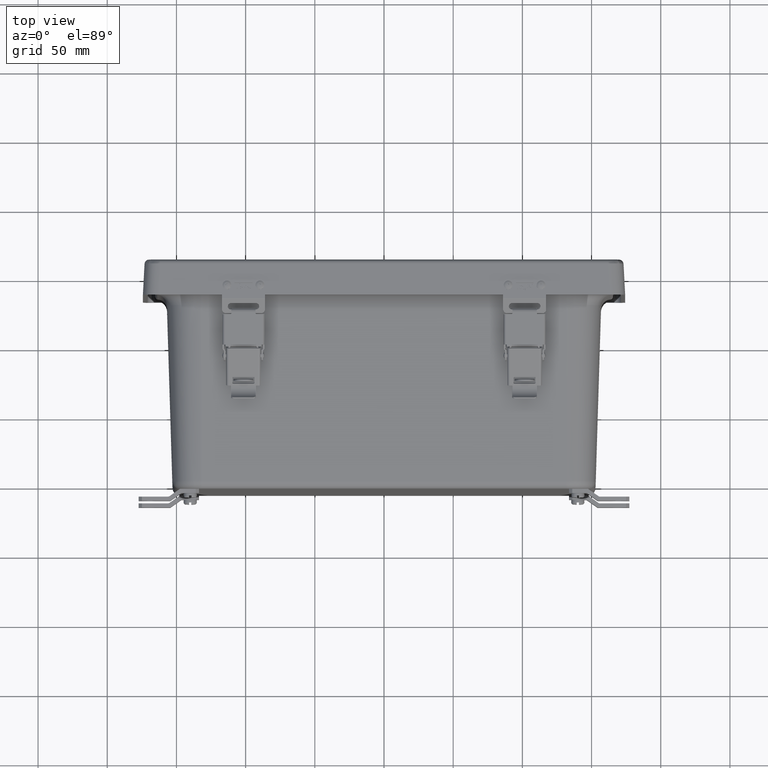
[diagram: clean part render]
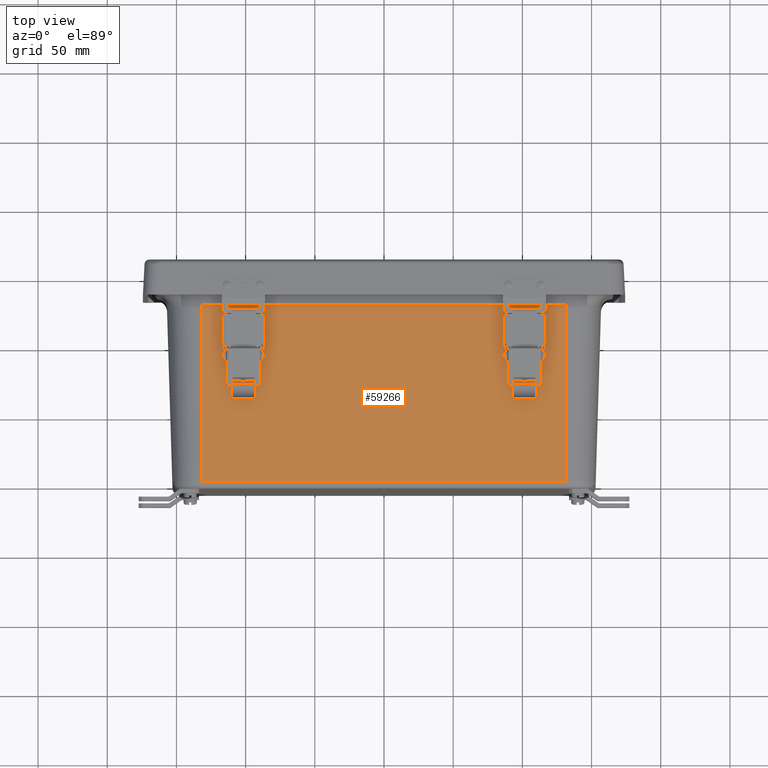
[diagram: same view with one face highlighted and labeled with its STEP entity id]
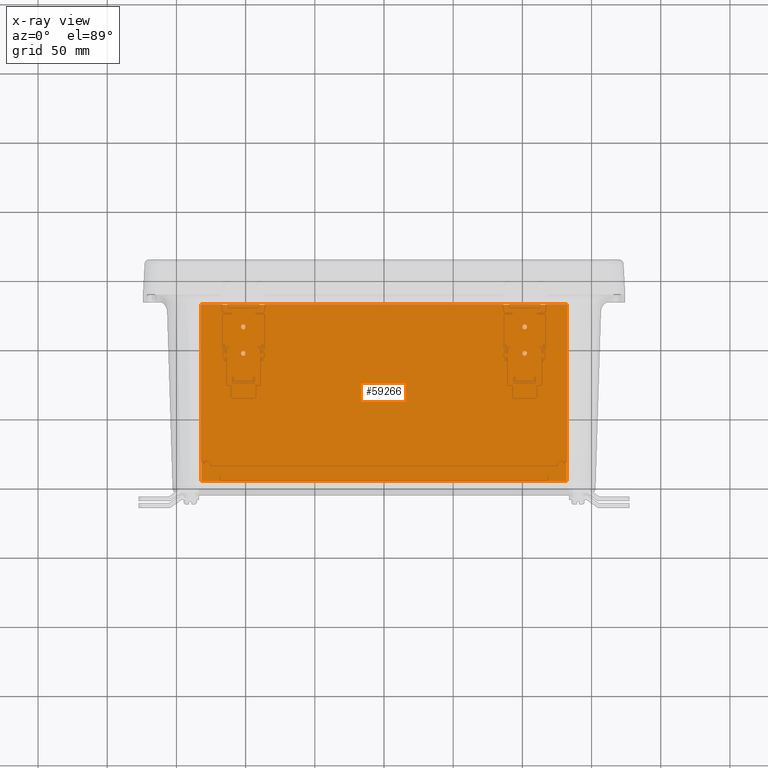
[diagram: x-ray of the same camera — body ghosted, the highlighted face saturated]
A machine part, top view. The second image highlights one B-rep face of the part: STEP entity #59266.
The next image is the same camera in x-ray: the body ghosted, the highlighted face saturated — about 0% of this face is hidden behind the body in this view.
In plain terms, the highlighted planar face has unit normal (0, -0.0305, 0.9995).
Its self-contained STEP definition (entity closure, byte-faithful):
#1722 = EDGE_CURVE ( 'NONE', #10350, #95828, #53704, .T. ) ;
#2208 =( BOUNDED_CURVE ( )  B_SPLINE_CURVE ( 3, ( #61749, #103355, #38068, #21660 ),
 .UNSPECIFIED., .F., .F. ) 
 B_SPLINE_CURVE_WITH_KNOTS ( ( 4, 4 ),
 ( 4.712388980384696800, 7.853981633974489900 ),
 .UNSPECIFIED. ) 
 CURVE ( )  GEOMETRIC_REPRESENTATION_ITEM ( )  RATIONAL_B_SPLINE_CURVE ( ( 1.000000000000000000, 0.3333333333333333700, 0.3333333333333333700, 1.000000000000000000 ) ) 
 REPRESENTATION_ITEM ( '' )  );
#3545 = EDGE_CURVE ( 'NONE', #72068, #5194, #35736, .T. ) ;
#3613 = CARTESIAN_POINT ( 'NONE',  ( -5.198999999999999800, -0.8964719838785354400, 6.171610303672742300 ) ) ;
#4088 = CARTESIAN_POINT ( 'NONE',  ( 3.932000000000000400, -2.274999999999999000, 6.129492463495709300 ) ) ;
#5194 = VERTEX_POINT ( 'NONE', #32462 ) ;
#5756 = CARTESIAN_POINT ( 'NONE',  ( -5.198999999999999800, -0.8964719838785353300, 6.171610303672742300 ) ) ;
#7986 = ORIENTED_EDGE ( 'NONE', *, *, #73530, .T. ) ;
#8818 = CARTESIAN_POINT ( 'NONE',  ( -4.067999999999999600, -2.274999999999999900, 6.129492463495710200 ) ) ;
#10174 = CARTESIAN_POINT ( 'NONE',  ( 3.932000000000000400, -2.410999999999999100, 6.125337287687100000 ) ) ;
#10321 = FACE_BOUND ( 'NONE', #32548, .T. ) ;
#10350 = VERTEX_POINT ( 'NONE', #42661 ) ;
#10526 = CARTESIAN_POINT ( 'NONE',  ( 4.068000000000000500, -1.524999999999998600, 6.152407035969649700 ) ) ;
#11142 = CARTESIAN_POINT ( 'NONE',  ( -3.932000000000000400, -1.388999999999999300, 6.156562211778260800 ) ) ;
#11466 = DIRECTION ( 'NONE',  ( 6.418663284611948800E-018, 0.9995335908367130000, 0.03053851320982272500 ) ) ;
#11502 = CARTESIAN_POINT ( 'NONE',  ( -4.067999999999999600, -1.388999999999999300, 6.156562211778260800 ) ) ;
#12413 = ORIENTED_EDGE ( 'NONE', *, *, #96557, .T. ) ;
#13355 = ORIENTED_EDGE ( 'NONE', *, *, #56010, .T. ) ;
#15214 = DIRECTION ( 'NONE',  ( 2.100845420063328200E-016, -0.03053851320982272500, 0.9995335908367130000 ) ) ;
#16110 = CARTESIAN_POINT ( 'NONE',  ( -3.931999999999999500, -2.274999999999999900, 6.129492463495710200 ) ) ;
#16114 = CARTESIAN_POINT ( 'NONE',  ( 3.932000000000000400, -2.138999999999998900, 6.133647639304316900 ) ) ;
#20344 = ORIENTED_EDGE ( 'NONE', *, *, #1722, .T. ) ;
#21660 = CARTESIAN_POINT ( 'NONE',  ( -4.067999999999999600, -1.524999999999999700, 6.152407035969652300 ) ) ;
#21825 = FACE_OUTER_BOUND ( 'NONE', #32884, .T. ) ;
#22005 = CARTESIAN_POINT ( 'NONE',  ( -3.931999999999999500, -1.524999999999999700, 6.152407035969652300 ) ) ;
#22646 = EDGE_CURVE ( 'NONE', #98776, #38755, #52693, .T. ) ;
#23588 = VERTEX_POINT ( 'NONE', #26193 ) ;
#23823 = DIRECTION ( 'NONE',  ( 0.0000000000000000000, -0.9995335908367130000, -0.03053851320982272500 ) ) ;
#23900 = CARTESIAN_POINT ( 'NONE',  ( -4.067999999999999600, -2.274999999999999900, 6.129492463495710200 ) ) ;
#25627 = VECTOR ( 'NONE', #94303, 39.37007874015748100 ) ;
#26193 = CARTESIAN_POINT ( 'NONE',  ( 5.198999999999999800, -0.8964719838785354400, 6.171610303672740500 ) ) ;
#26380 =( BOUNDED_CURVE ( )  B_SPLINE_CURVE ( 3, ( #74368, #48915, #33178, #58233 ),
 .UNSPECIFIED., .F., .F. ) 
 B_SPLINE_CURVE_WITH_KNOTS ( ( 4, 4 ),
 ( 1.570796326794903400, 4.712388980384696800 ),
 .UNSPECIFIED. ) 
 CURVE ( )  GEOMETRIC_REPRESENTATION_ITEM ( )  RATIONAL_B_SPLINE_CURVE ( ( 1.000000000000000000, 0.3333333333333333700, 0.3333333333333333700, 1.000000000000000000 ) ) 
 REPRESENTATION_ITEM ( '' )  );
#26643 = CARTESIAN_POINT ( 'NONE',  ( 4.068000000000000500, -2.410999999999999100, 6.125337287687100000 ) ) ;
#26905 = ORIENTED_EDGE ( 'NONE', *, *, #101517, .T. ) ;
#27363 = EDGE_CURVE ( 'NONE', #38755, #98776, #2208, .T. ) ;
#28374 = CARTESIAN_POINT ( 'NONE',  ( -5.198999999999999800, 0.0000000000000000000, 6.198999999999999800 ) ) ;
#29815 = EDGE_LOOP ( 'NONE', ( #33124, #26905 ) ) ;
#30826 = VERTEX_POINT ( 'NONE', #40435 ) ;
#31443 = CARTESIAN_POINT ( 'NONE',  ( -5.198999999999999800, -5.912687934392951500, 6.018351045082069600 ) ) ;
#32462 = CARTESIAN_POINT ( 'NONE',  ( 4.068000000000000500, -2.274999999999999000, 6.129492463495709300 ) ) ;
#32548 = EDGE_LOOP ( 'NONE', ( #99297, #77081 ) ) ;
#32884 = EDGE_LOOP ( 'NONE', ( #105354, #20344, #13355, #7986 ) ) ;
#33124 = ORIENTED_EDGE ( 'NONE', *, *, #78334, .T. ) ;
#33178 = CARTESIAN_POINT ( 'NONE',  ( 4.068000000000000500, -1.388999999999998500, 6.156562211778258100 ) ) ;
#35736 =( BOUNDED_CURVE ( )  B_SPLINE_CURVE ( 3, ( #88843, #16114, #40053, #72339 ),
 .UNSPECIFIED., .F., .T. ) 
 B_SPLINE_CURVE_WITH_KNOTS ( ( 4, 4 ),
 ( 1.570796326794903400, 4.712388980384696800 ),
 .UNSPECIFIED. ) 
 CURVE ( )  GEOMETRIC_REPRESENTATION_ITEM ( )  RATIONAL_B_SPLINE_CURVE ( ( 1.000000000000000000, 0.3333333333333333700, 0.3333333333333333700, 1.000000000000000000 ) ) 
 REPRESENTATION_ITEM ( '' )  );
#37769 = ORIENTED_EDGE ( 'NONE', *, *, #27363, .T. ) ;
#37947 =( BOUNDED_CURVE ( )  B_SPLINE_CURVE ( 3, ( #95667, #46531, #105683, #64414 ),
 .UNSPECIFIED., .F., .F. ) 
 B_SPLINE_CURVE_WITH_KNOTS ( ( 4, 4 ),
 ( 4.712388980384696800, 7.853981633974489900 ),
 .UNSPECIFIED. ) 
 CURVE ( )  GEOMETRIC_REPRESENTATION_ITEM ( )  RATIONAL_B_SPLINE_CURVE ( ( 1.000000000000000000, 0.3333333333333333700, 0.3333333333333333700, 1.000000000000000000 ) ) 
 REPRESENTATION_ITEM ( '' )  );
#38068 = CARTESIAN_POINT ( 'NONE',  ( -4.067999999999999600, -1.660999999999999800, 6.148251860161043000 ) ) ;
#38755 = VERTEX_POINT ( 'NONE', #22005 ) ;
#39218 = VERTEX_POINT ( 'NONE', #54064 ) ;
#40053 = CARTESIAN_POINT ( 'NONE',  ( 4.068000000000000500, -2.138999999999998900, 6.133647639304316900 ) ) ;
#40435 = CARTESIAN_POINT ( 'NONE',  ( 3.932000000000000400, -1.524999999999998600, 6.152407035969649700 ) ) ;
#40953 = FACE_BOUND ( 'NONE', #49221, .T. ) ;
#42661 = CARTESIAN_POINT ( 'NONE',  ( -5.198999999999999800, -5.912687934392951500, 6.018351045082069600 ) ) ;
#42914 = VECTOR ( 'NONE', #71571, 39.37007874015748100 ) ;
#46531 = CARTESIAN_POINT ( 'NONE',  ( -3.932000000000000400, -2.411000000000000500, 6.125337287687101700 ) ) ;
#48569 = VECTOR ( 'NONE', #71892, 39.37007874015748100 ) ;
#48915 = CARTESIAN_POINT ( 'NONE',  ( 3.932000000000000400, -1.388999999999998500, 6.156562211778258100 ) ) ;
#49221 = EDGE_LOOP ( 'NONE', ( #55021, #37769 ) ) ;
#51033 = LINE ( 'NONE', #76581, #66463 ) ;
#52693 =( BOUNDED_CURVE ( )  B_SPLINE_CURVE ( 3, ( #76270, #11502, #11142, #76616 ),
 .UNSPECIFIED., .F., .F. ) 
 B_SPLINE_CURVE_WITH_KNOTS ( ( 4, 4 ),
 ( 1.570796326794903400, 4.712388980384696800 ),
 .UNSPECIFIED. ) 
 CURVE ( )  GEOMETRIC_REPRESENTATION_ITEM ( )  RATIONAL_B_SPLINE_CURVE ( ( 1.000000000000000000, 0.3333333333333333700, 0.3333333333333333700, 1.000000000000000000 ) ) 
 REPRESENTATION_ITEM ( '' )  );
#53704 = LINE ( 'NONE', #31443, #48569 ) ;
#54064 = CARTESIAN_POINT ( 'NONE',  ( -3.931999999999999500, -2.274999999999999900, 6.129492463495710200 ) ) ;
#55021 = ORIENTED_EDGE ( 'NONE', *, *, #22646, .T. ) ;
#55989 = CARTESIAN_POINT ( 'NONE',  ( -5.198999999999999800, 0.0000000000000000000, 6.198999999999999800 ) ) ;
#56010 = EDGE_CURVE ( 'NONE', #95828, #23588, #51033, .T. ) ;
#57494 = CARTESIAN_POINT ( 'NONE',  ( -4.067999999999999600, -1.524999999999999700, 6.152407035969652300 ) ) ;
#58233 = CARTESIAN_POINT ( 'NONE',  ( 4.068000000000000500, -1.524999999999998600, 6.152407035969649700 ) ) ;
#59266 = ADVANCED_FACE ( 'NONE', ( #93574, #79420, #10321, #40953, #21825 ), #98663, .T. ) ;
#60299 = CARTESIAN_POINT ( 'NONE',  ( -3.932000000000000400, -2.138999999999999800, 6.133647639304319600 ) ) ;
#61749 = CARTESIAN_POINT ( 'NONE',  ( -3.931999999999999500, -1.524999999999999700, 6.152407035969652300 ) ) ;
#63085 =( BOUNDED_CURVE ( )  B_SPLINE_CURVE ( 3, ( #10526, #99724, #91809, #76717 ),
 .UNSPECIFIED., .F., .F. ) 
 B_SPLINE_CURVE_WITH_KNOTS ( ( 4, 4 ),
 ( 4.712388980384696800, 7.853981633974489900 ),
 .UNSPECIFIED. ) 
 CURVE ( )  GEOMETRIC_REPRESENTATION_ITEM ( )  RATIONAL_B_SPLINE_CURVE ( ( 1.000000000000000000, 0.3333333333333333700, 0.3333333333333333700, 1.000000000000000000 ) ) 
 REPRESENTATION_ITEM ( '' )  );
#64414 = CARTESIAN_POINT ( 'NONE',  ( -4.067999999999999600, -2.274999999999999900, 6.129492463495710200 ) ) ;
#65524 = AXIS2_PLACEMENT_3D ( 'NONE', #55989, #15214, #23823 ) ;
#65725 = VERTEX_POINT ( 'NONE', #105486 ) ;
#66463 = VECTOR ( 'NONE', #11466, 39.37007874015748100 ) ;
#67245 = ORIENTED_EDGE ( 'NONE', *, *, #3545, .T. ) ;
#67428 = CARTESIAN_POINT ( 'NONE',  ( 3.932000000000000400, -2.274999999999999000, 6.129492463495709300 ) ) ;
#69369 = EDGE_CURVE ( 'NONE', #30826, #65725, #26380, .T. ) ;
#70247 =( BOUNDED_CURVE ( )  B_SPLINE_CURVE ( 3, ( #100098, #26643, #10174, #67428 ),
 .UNSPECIFIED., .F., .F. ) 
 B_SPLINE_CURVE_WITH_KNOTS ( ( 4, 4 ),
 ( 4.712388980384696800, 7.853981633974489900 ),
 .UNSPECIFIED. ) 
 CURVE ( )  GEOMETRIC_REPRESENTATION_ITEM ( )  RATIONAL_B_SPLINE_CURVE ( ( 1.000000000000000000, 0.3333333333333333700, 0.3333333333333333700, 1.000000000000000000 ) ) 
 REPRESENTATION_ITEM ( '' )  );
#71571 = DIRECTION ( 'NONE',  ( -1.000000000000000000, 3.593085495644085600E-037, 2.101825730843826400E-016 ) ) ;
#71892 = DIRECTION ( 'NONE',  ( 1.000000000000000000, -3.593085495644085600E-037, -2.101825730843826400E-016 ) ) ;
#72068 = VERTEX_POINT ( 'NONE', #4088 ) ;
#72339 = CARTESIAN_POINT ( 'NONE',  ( 4.068000000000000500, -2.274999999999999000, 6.129492463495709300 ) ) ;
#72944 = EDGE_CURVE ( 'NONE', #65725, #30826, #63085, .T. ) ;
#73530 = EDGE_CURVE ( 'NONE', #23588, #105223, #89126, .T. ) ;
#74368 = CARTESIAN_POINT ( 'NONE',  ( 3.932000000000000400, -1.524999999999998600, 6.152407035969649700 ) ) ;
#76270 = CARTESIAN_POINT ( 'NONE',  ( -4.067999999999999600, -1.524999999999999700, 6.152407035969652300 ) ) ;
#76581 = CARTESIAN_POINT ( 'NONE',  ( 5.198999999999999800, -1.516480271171051900E-032, 6.198999999999998100 ) ) ;
#76616 = CARTESIAN_POINT ( 'NONE',  ( -3.931999999999999500, -1.524999999999999700, 6.152407035969652300 ) ) ;
#76717 = CARTESIAN_POINT ( 'NONE',  ( 3.932000000000000400, -1.524999999999998600, 6.152407035969649700 ) ) ;
#77081 = ORIENTED_EDGE ( 'NONE', *, *, #72944, .T. ) ;
#77750 = EDGE_CURVE ( 'NONE', #10350, #105223, #105091, .T. ) ;
#78334 = EDGE_CURVE ( 'NONE', #93879, #39218, #97240, .T. ) ;
#79420 = FACE_BOUND ( 'NONE', #29815, .T. ) ;
#88843 = CARTESIAN_POINT ( 'NONE',  ( 3.932000000000000400, -2.274999999999999000, 6.129492463495709300 ) ) ;
#89126 = LINE ( 'NONE', #5756, #42914 ) ;
#91809 = CARTESIAN_POINT ( 'NONE',  ( 3.932000000000000400, -1.660999999999998700, 6.148251860161042100 ) ) ;
#93574 = FACE_BOUND ( 'NONE', #102557, .T. ) ;
#93879 = VERTEX_POINT ( 'NONE', #8818 ) ;
#94303 = DIRECTION ( 'NONE',  ( 0.0000000000000000000, 0.9995335908367130000, 0.03053851320982272500 ) ) ;
#95667 = CARTESIAN_POINT ( 'NONE',  ( -3.931999999999999500, -2.274999999999999900, 6.129492463495710200 ) ) ;
#95727 = CARTESIAN_POINT ( 'NONE',  ( 5.198999999999999800, -5.912687934392951500, 6.018351045082067000 ) ) ;
#95828 = VERTEX_POINT ( 'NONE', #95727 ) ;
#96557 = EDGE_CURVE ( 'NONE', #5194, #72068, #70247, .T. ) ;
#97240 =( BOUNDED_CURVE ( )  B_SPLINE_CURVE ( 3, ( #23900, #104866, #60299, #16110 ),
 .UNSPECIFIED., .F., .F. ) 
 B_SPLINE_CURVE_WITH_KNOTS ( ( 4, 4 ),
 ( 1.570796326794903400, 4.712388980384696800 ),
 .UNSPECIFIED. ) 
 CURVE ( )  GEOMETRIC_REPRESENTATION_ITEM ( )  RATIONAL_B_SPLINE_CURVE ( ( 1.000000000000000000, 0.3333333333333333700, 0.3333333333333333700, 1.000000000000000000 ) ) 
 REPRESENTATION_ITEM ( '' )  );
#98663 = PLANE ( 'NONE',  #65524 ) ;
#98776 = VERTEX_POINT ( 'NONE', #57494 ) ;
#99297 = ORIENTED_EDGE ( 'NONE', *, *, #69369, .T. ) ;
#99724 = CARTESIAN_POINT ( 'NONE',  ( 4.068000000000000500, -1.660999999999998700, 6.148251860161042100 ) ) ;
#100098 = CARTESIAN_POINT ( 'NONE',  ( 4.068000000000000500, -2.274999999999999000, 6.129492463495709300 ) ) ;
#101517 = EDGE_CURVE ( 'NONE', #39218, #93879, #37947, .T. ) ;
#102557 = EDGE_LOOP ( 'NONE', ( #67245, #12413 ) ) ;
#103355 = CARTESIAN_POINT ( 'NONE',  ( -3.932000000000000400, -1.660999999999999800, 6.148251860161043000 ) ) ;
#104866 = CARTESIAN_POINT ( 'NONE',  ( -4.067999999999999600, -2.138999999999999800, 6.133647639304319600 ) ) ;
#105091 = LINE ( 'NONE', #28374, #25627 ) ;
#105223 = VERTEX_POINT ( 'NONE', #3613 ) ;
#105354 = ORIENTED_EDGE ( 'NONE', *, *, #77750, .F. ) ;
#105486 = CARTESIAN_POINT ( 'NONE',  ( 4.068000000000000500, -1.524999999999998600, 6.152407035969649700 ) ) ;
#105683 = CARTESIAN_POINT ( 'NONE',  ( -4.067999999999999600, -2.411000000000000500, 6.125337287687101700 ) ) ;